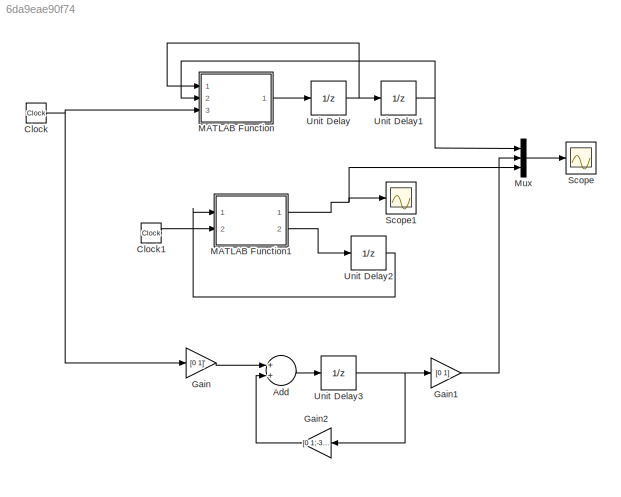
MODEL slx_6da9eae90f74
KIND model
CONFIG AbsTol = auto
CONFIG FixedStep = 1
CONFIG MaxStep = auto
CONFIG MinStep = auto
CONFIG RelTol = 1e-3
CONFIG SampleTimeConstraint = Unconstrained
CONFIG Solver = ode3
CONFIG SolverMode = Auto
CONFIG SolverName = ode3
CONFIG StartTime = 0.0
CONFIG StopTime = 10
BLOCK [Sum] Add
  InputSameDT = off
  OutDataTypeStr = Inherit: Inherit via internal rule
  Ports = [2, 1]
  SaturateOnIntegerOverflow = off
BLOCK [Clock] Clock
BLOCK [Clock] Clock1
BLOCK [Gain] Gain
  Gain = [0 1]'
  Multiplication = Matrix(K*u)
  OutDataTypeStr = Inherit: Inherit via internal rule
  ParamDataTypeStr = Inherit: Inherit via internal rule
  SaturateOnIntegerOverflow = off
BLOCK [Gain] Gain1
  Gain = [0 1]
  Multiplication = Matrix(K*u)
  OutDataTypeStr = Inherit: Inherit via internal rule
  ParamDataTypeStr = Inherit: Inherit via internal rule
  SaturateOnIntegerOverflow = off
BLOCK [Gain] Gain2
  Gain = [0 1;-3 -4]
  Multiplication = Matrix(K*u)
  OutDataTypeStr = Inherit: Inherit via internal rule
  ParamDataTypeStr = Inherit: Inherit via internal rule
  SaturateOnIntegerOverflow = off
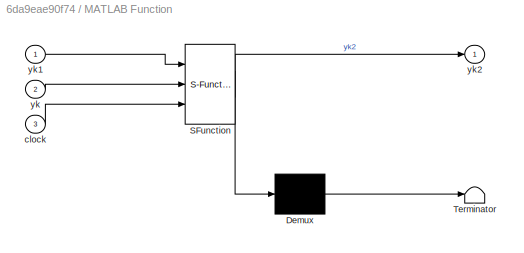
BLOCK [SubSystem] MATLAB Function
  ErrorFcn = Stateflow.Translate.translate
  PermitHierarchicalResolution = ExplicitOnly
  Ports = [3, 1]
  RequestExecContextInheritance = off
  SFBlockType = MATLAB Function
  TreatAsAtomicUnit = on
BLOCK [Demux] MATLAB Function/ Demux 
  Outputs = 1
  Ports = [1, 1]
BLOCK [S-Function] MATLAB Function/ SFunction 
  EnableBusSupport = on
  FunctionName = sf_sfun
  PortCounts = [3 2]
  Ports = [3, 2]
  Tag = Stateflow S-Function simulacion1 2
BLOCK [Terminator] MATLAB Function/ Terminator 
BLOCK [Inport] MATLAB Function/clock
  IconDisplay = Port number
  Port = 3
BLOCK [Inport] MATLAB Function/yk
  IconDisplay = Port number
  Port = 2
BLOCK [Inport] MATLAB Function/yk1
  IconDisplay = Port number
BLOCK [Outport] MATLAB Function/yk2
  IconDisplay = Port number
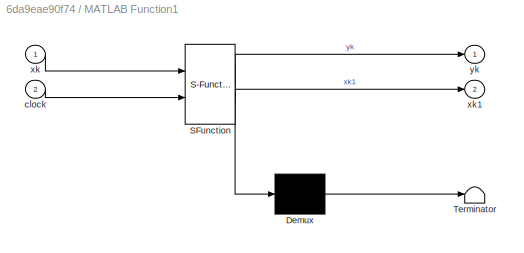
BLOCK [SubSystem] MATLAB Function1
  ErrorFcn = Stateflow.Translate.translate
  PermitHierarchicalResolution = ExplicitOnly
  Ports = [2, 2]
  RequestExecContextInheritance = off
  SFBlockType = MATLAB Function
  TreatAsAtomicUnit = on
BLOCK [Demux] MATLAB Function1/ Demux 
  Outputs = 1
  Ports = [1, 1]
BLOCK [S-Function] MATLAB Function1/ SFunction 
  EnableBusSupport = on
  FunctionName = sf_sfun
  PortCounts = [2 3]
  Ports = [2, 3]
  Tag = Stateflow S-Function simulacion1 1
BLOCK [Terminator] MATLAB Function1/ Terminator 
BLOCK [Inport] MATLAB Function1/clock
  IconDisplay = Port number
  Port = 2
BLOCK [Inport] MATLAB Function1/xk
  IconDisplay = Port number
BLOCK [Outport] MATLAB Function1/xk1
  IconDisplay = Port number
  Port = 2
BLOCK [Outport] MATLAB Function1/yk
  IconDisplay = Port number
BLOCK [Mux] Mux
  DisplayOption = bar
  Inputs = 3
  Ports = [3, 1]
BLOCK [Scope] Scope
  Floating = off
  LimitDataPoints = off
  NumInputPorts = 1
  Ports = [1]
  YMax = 400
  YMin = -800
  ZoomMode = yonly
BLOCK [Scope] Scope1
  Floating = off
  LimitDataPoints = off
  NumInputPorts = 1
  Ports = [1]
  SaveName = ScopeData1
BLOCK [UnitDelay] Unit Delay
  InitialCondition = 1
  InputProcessing = Elements as channels (sample based)
  SampleTime = -1
BLOCK [UnitDelay] Unit Delay1
  InitialCondition = -1
  InputProcessing = Elements as channels (sample based)
  SampleTime = -1
BLOCK [UnitDelay] Unit Delay2
  InitialCondition = [1 -1]
  InputProcessing = Elements as channels (sample based)
  SampleTime = -1
BLOCK [UnitDelay] Unit Delay3
  InitialCondition = [1 -1]
  InputProcessing = Elements as channels (sample based)
  SampleTime = -1
LINE Add:1 -> Unit Delay3:1
LINE Clock1:1 -> MATLAB Function1:2
NET Clock:1 -> Gain:1, MATLAB Function:3
LINE Gain1:1 -> Mux:2
LINE Gain2:1 -> Add:2
LINE Gain:1 -> Add:1
NET MATLAB Function1:1 -> Mux:3, Scope1:1
LINE MATLAB Function1:2 -> Unit Delay2:1
LINE MATLAB Function:1 -> Unit Delay:1
LINE Mux:1 -> Scope:1
NET Unit Delay1:1 -> MATLAB Function:2, Mux:1
LINE Unit Delay2:1 -> MATLAB Function1:1
NET Unit Delay3:1 -> Gain1:1, Gain2:1
NET Unit Delay:1 -> MATLAB Function:1, Unit Delay1:1
note: NET lines group one-source signal fan-out (src -> all destinations, sorted); 1:1 wires keep LINE
CHART MATLAB Function1 states=1 transitions=1
  STATE_LABEL 'eML_blk_kernel()'
  STATE_LABEL "SCRIPT:\nfunction [yk,xk1] = fcn(xk,clock)\n%#codegen\nuk=clock;\nA=[0 1;-3 -4];\nB=[0 1]';\nC=[0 1];\nxk1= A*xk + B*uk;\nyk=C*xk;"
CHART MATLAB Function states=1 transitions=1
  STATE_LABEL 'eML_blk_kernel()'
  STATE_LABEL 'SCRIPT:\nfunction yk2 = fcn(yk1,yk,clock)\n%#codegen\nuk1=clock+1;\nyk2=-4*yk1-3*yk+uk1;'
